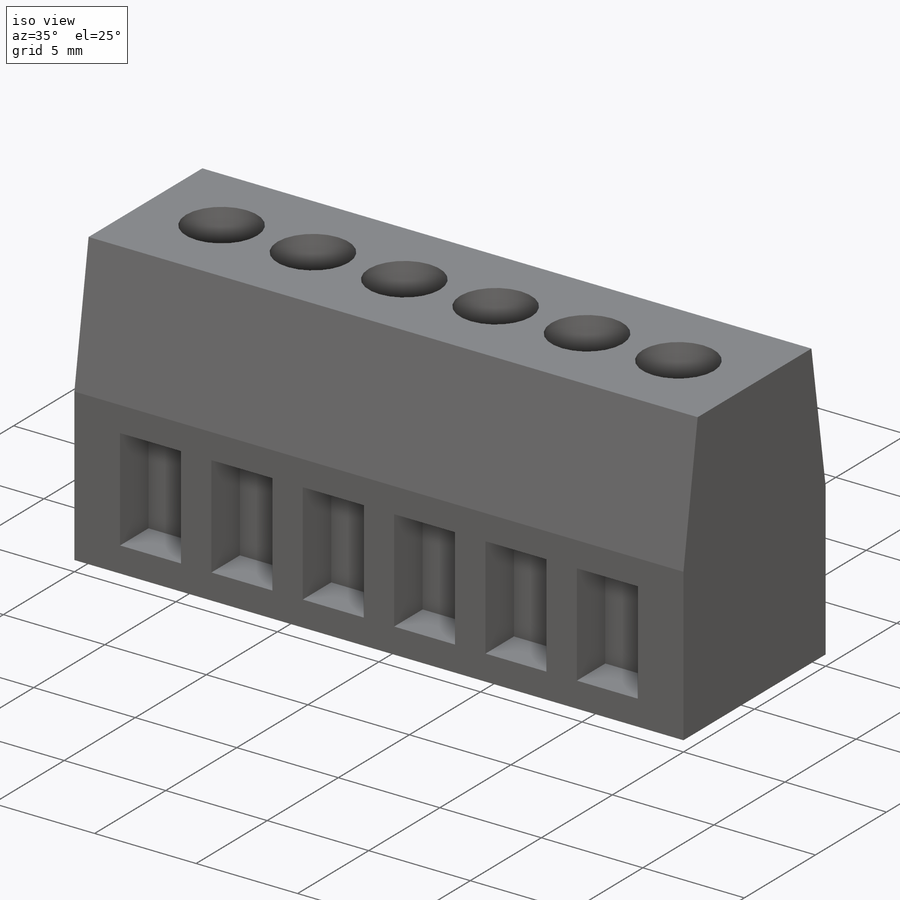
[diagram: iso view]
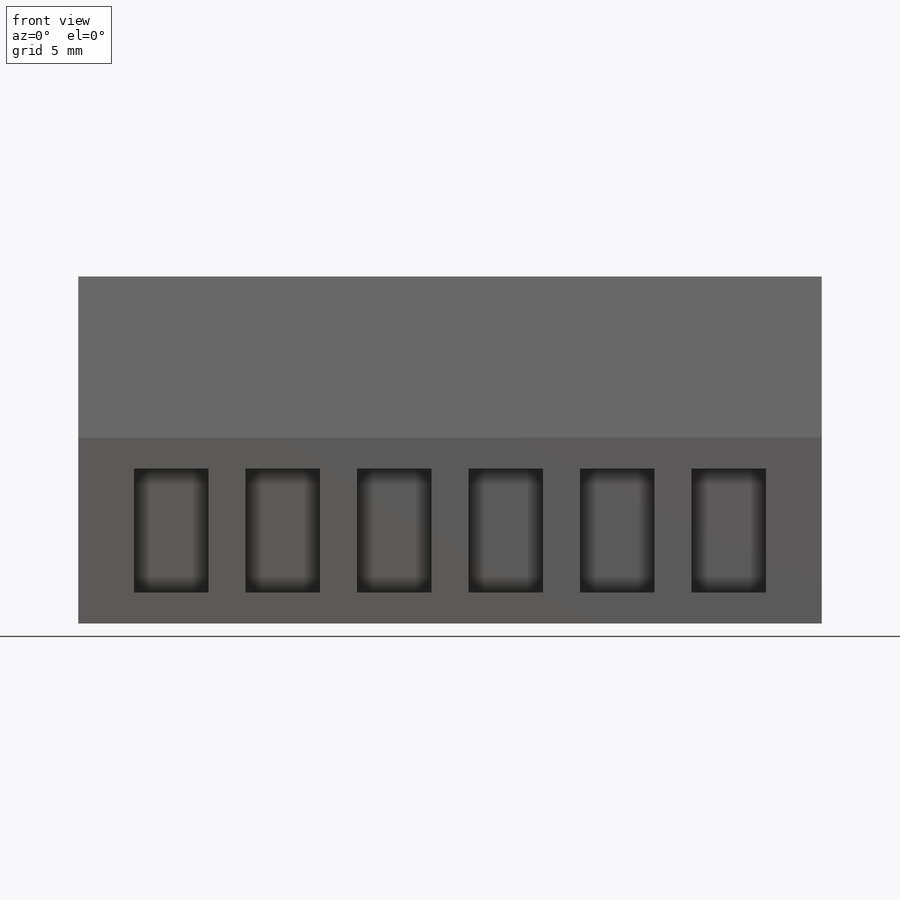
[diagram: front view]
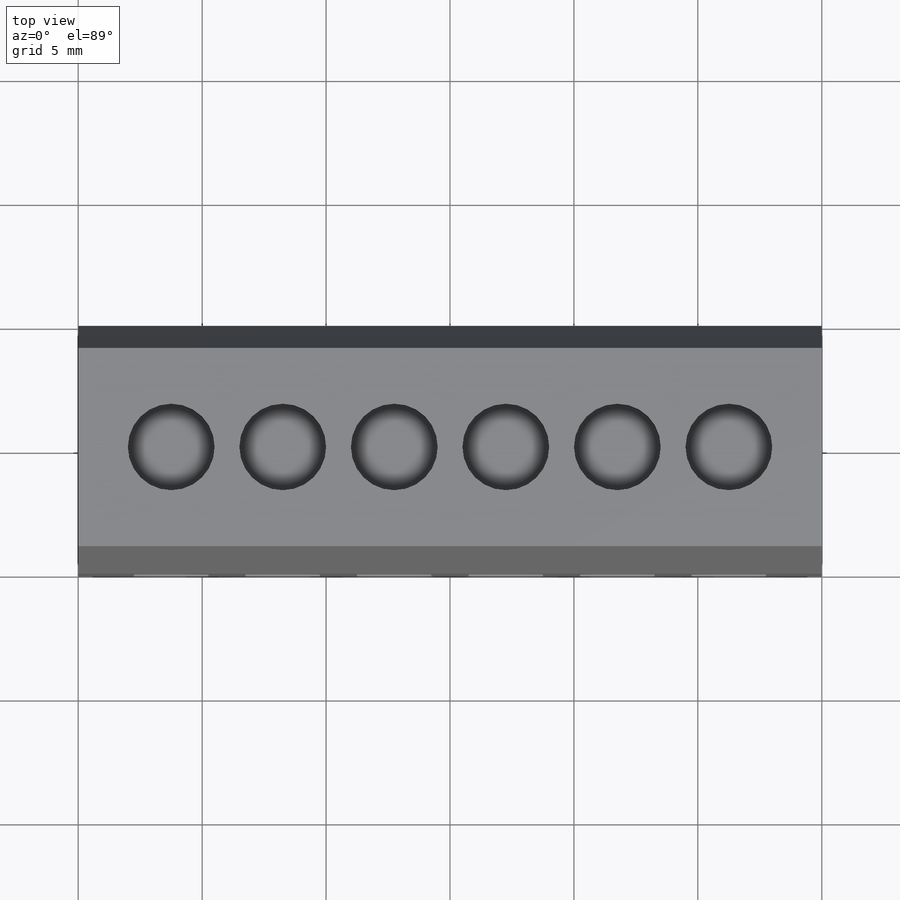
[diagram: top view]
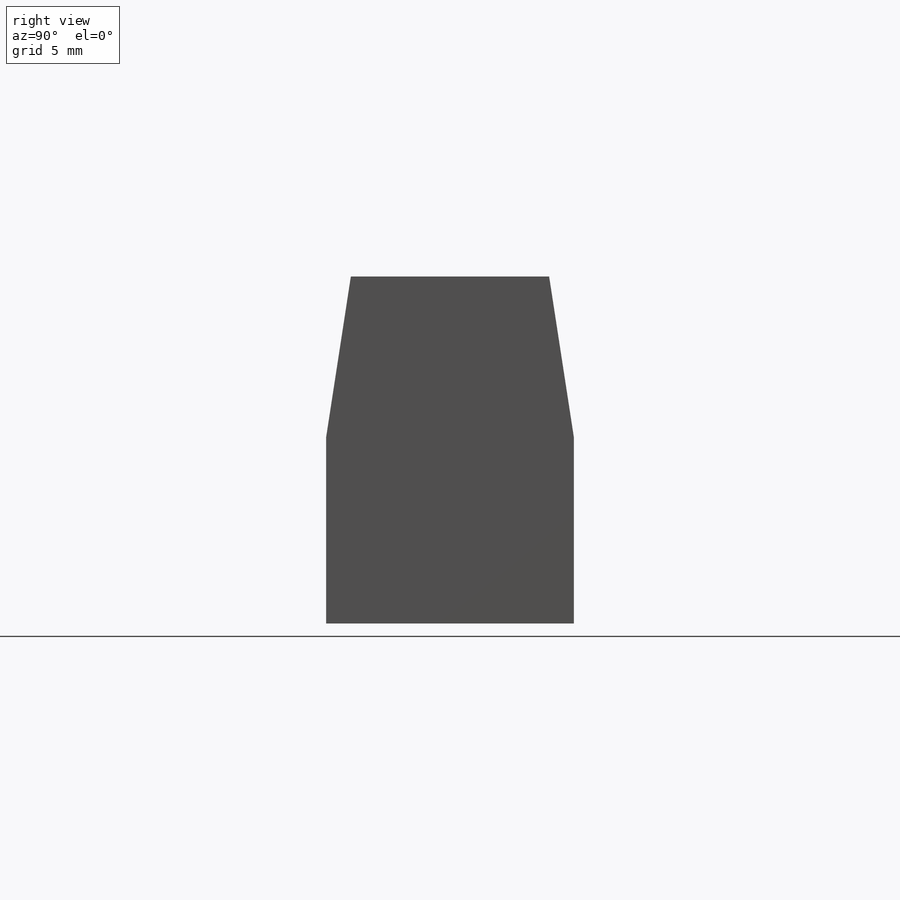
[diagram: right view]
SOLIDWORKS PART (.sldprt)
format: sldprt  version: not decoded by parser v0  size: 206,848 bytes
history: native  units: mm
features: sketch x4, plane x3, cut_extrude x3, material x1, extrude x1 (+9 scaffold rows collapsed)
feature tree (21):
  scaffold x9  (default folders/planes/origin — collapsed)
  material  "Material <sin especificar>"
  plane  "Alzado"
  plane  "Planta"
  plane  "Vista lateral"
  sketch  "Croquis1"  dims[D1=30.0mm D2=10.0mm]
  extrude  "Saliente-Extruir1"  Depth=14mm
  sketch  "Croquis2"  dims[D1=7.5mm D2=1.0mm D3=1.0mm]
  cut_extrude  "Cortar-Extruir1"  [1 undecoded]
  sketch  "Croquis3"  dims[D1=3.0mm D2=5.0mm D3=2.25mm D4=1.25mm D5=6.0]
  cut_extrude  "Cortar-Extruir2"  Depth=2mm
  sketch  "Croquis4"  dims[D2=3.5mm D1=3.75mm D3=6.0]
  cut_extrude  "Cortar-Extruir3"  Depth=2mm
decode coverage: 7 of 8 modeling features carry decoded parameters
note: 1 parameter value undecoded
note: suppression state not decoded; provenance and decode notes live in map.json
